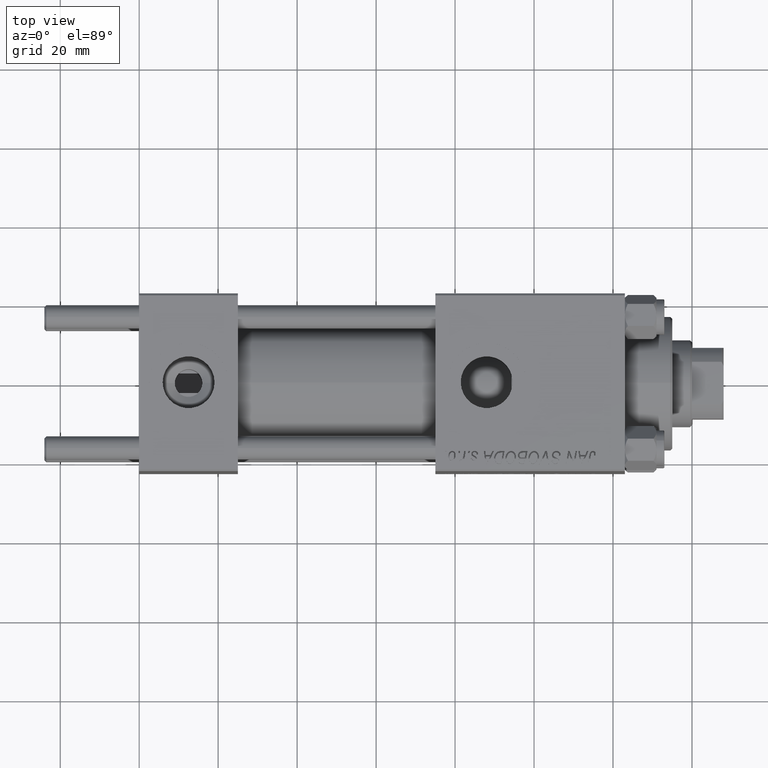
[diagram: clean part render]
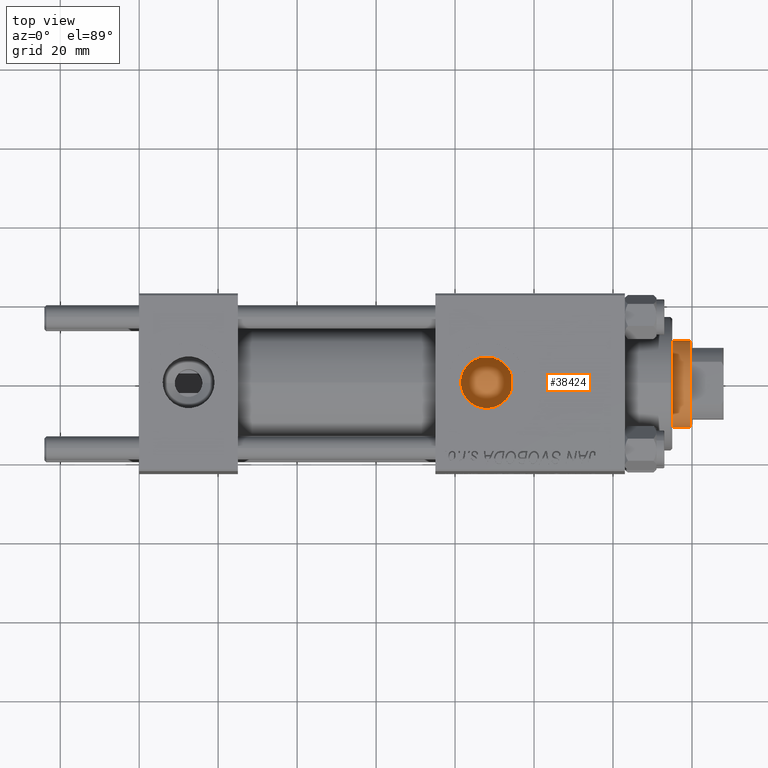
[diagram: same view with one face highlighted and labeled with its STEP entity id]
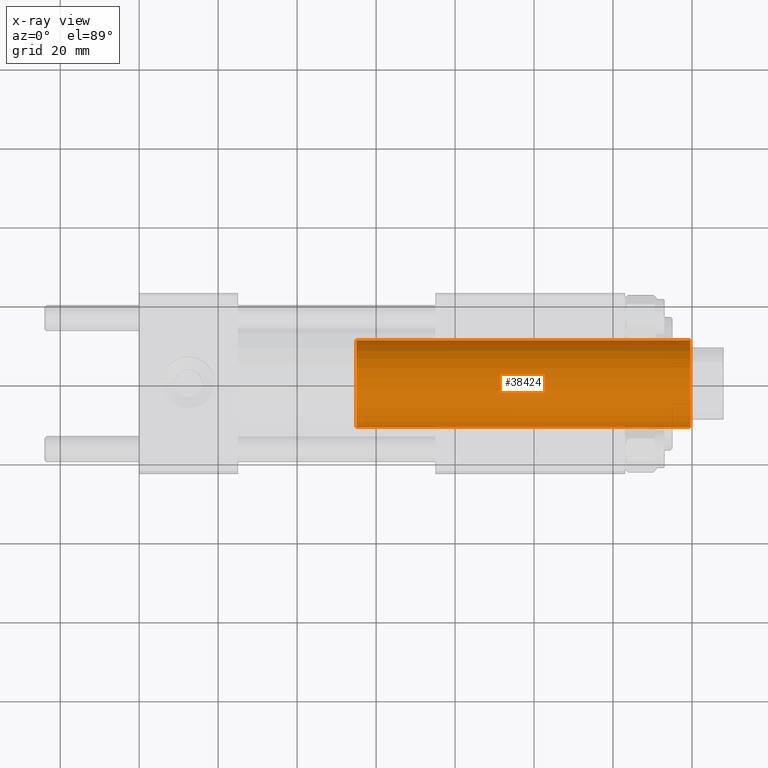
[diagram: x-ray of the same camera — body ghosted, the highlighted face saturated]
A machine part, top view. The second image highlights one B-rep face of the part: STEP entity #38424.
The next image is the same camera in x-ray: the body ghosted, the highlighted face saturated — about 2% of this face is hidden behind the body in this view.
In plain terms, the highlighted cylindrical surface (partial cylindrical patch) has radius 11 mm, axis along (-1, 0, 0).
Its self-contained STEP definition (entity closure, byte-faithful):
#281 = ORIENTED_EDGE ( 'NONE', *, *, #17576, .T. ) ;
#4629 = LINE ( 'NONE', #40639, #37681 ) ;
#6415 = EDGE_CURVE ( 'NONE', #28409, #36766, #39863, .T. ) ;
#7759 = DIRECTION ( 'NONE',  ( 0.000000000000000000, 0.000000000000000000, 1.000000000000000000 ) ) ;
#10389 = ORIENTED_EDGE ( 'NONE', *, *, #34858, .F. ) ;
#12506 = DIRECTION ( 'NONE',  ( -0.000000000000000000, -0.000000000000000000, -1.000000000000000000 ) ) ;
#14849 = DIRECTION ( 'NONE',  ( 1.000000000000000000, 0.000000000000000000, 0.000000000000000000 ) ) ;
#15575 = CARTESIAN_POINT ( 'NONE',  ( 0.000000000000000000, 0.000000000000000000, 115.0000000000000000 ) ) ;
#16330 = CARTESIAN_POINT ( 'NONE',  ( 11.00000000000000000, 1.347111479062088405E-15, 30.00000000000000000 ) ) ;
#17537 = VERTEX_POINT ( 'NONE', #40113 ) ;
#17576 = EDGE_CURVE ( 'NONE', #36766, #17537, #4629, .T. ) ;
#18522 = EDGE_CURVE ( 'NONE', #17537, #21528, #22572, .T. ) ;
#21528 = VERTEX_POINT ( 'NONE', #16330 ) ;
#22572 = CIRCLE ( 'NONE', #47748, 11.00000000000000000 ) ;
#23914 = AXIS2_PLACEMENT_3D ( 'NONE', #50892, #27478, #14849 ) ;
#24072 = CARTESIAN_POINT ( 'NONE',  ( 0.000000000000000000, 0.000000000000000000, 30.00000000000000000 ) ) ;
#24641 = CARTESIAN_POINT ( 'NONE',  ( -11.00000000000000000, 0.000000000000000000, 114.5000000000000142 ) ) ;
#26797 = ORIENTED_EDGE ( 'NONE', *, *, #6415, .T. ) ;
#26814 = EDGE_LOOP ( 'NONE', ( #10389, #26797, #281, #31716 ) ) ;
#27478 = DIRECTION ( 'NONE',  ( 0.000000000000000000, 0.000000000000000000, -1.000000000000000000 ) ) ;
#27689 = DIRECTION ( 'NONE',  ( -0.000000000000000000, -0.000000000000000000, -1.000000000000000000 ) ) ;
#28409 = VERTEX_POINT ( 'NONE', #40912 ) ;
#31716 = ORIENTED_EDGE ( 'NONE', *, *, #18522, .T. ) ;
#34858 = EDGE_CURVE ( 'NONE', #28409, #21528, #48454, .T. ) ;
#35318 = CYLINDRICAL_SURFACE ( 'NONE', #48315, 11.00000000000000000 ) ;
#35572 = DIRECTION ( 'NONE',  ( -0.000000000000000000, -0.000000000000000000, -1.000000000000000000 ) ) ;
#36766 = VERTEX_POINT ( 'NONE', #24641 ) ;
#37681 = VECTOR ( 'NONE', #12506, 1000.000000000000000 ) ;
#38424 = ADVANCED_FACE ( 'NONE', ( #47414 ), #35318, .T. ) ;
#39863 = CIRCLE ( 'NONE', #23914, 11.00000000000000000 ) ;
#40113 = CARTESIAN_POINT ( 'NONE',  ( -11.00000000000000000, 0.000000000000000000, 30.00000000000000000 ) ) ;
#40639 = CARTESIAN_POINT ( 'NONE',  ( -11.00000000000000000, 0.000000000000000000, 115.0000000000000000 ) ) ;
#40912 = CARTESIAN_POINT ( 'NONE',  ( 11.00000000000000000, 1.347111479062088405E-15, 114.5000000000000142 ) ) ;
#42298 = VECTOR ( 'NONE', #27689, 1000.000000000000000 ) ;
#43267 = DIRECTION ( 'NONE',  ( 1.000000000000000000, 0.000000000000000000, 0.000000000000000000 ) ) ;
#43455 = DIRECTION ( 'NONE',  ( -1.000000000000000000, 0.000000000000000000, 0.000000000000000000 ) ) ;
#47414 = FACE_OUTER_BOUND ( 'NONE', #26814, .T. ) ;
#47748 = AXIS2_PLACEMENT_3D ( 'NONE', #24072, #7759, #43267 ) ;
#48315 = AXIS2_PLACEMENT_3D ( 'NONE', #15575, #35572, #43455 ) ;
#48454 = LINE ( 'NONE', #51883, #42298 ) ;
#50892 = CARTESIAN_POINT ( 'NONE',  ( 0.000000000000000000, 0.000000000000000000, 114.5000000000000142 ) ) ;
#51883 = CARTESIAN_POINT ( 'NONE',  ( 11.00000000000000000, 1.347111479062088405E-15, 115.0000000000000000 ) ) ;